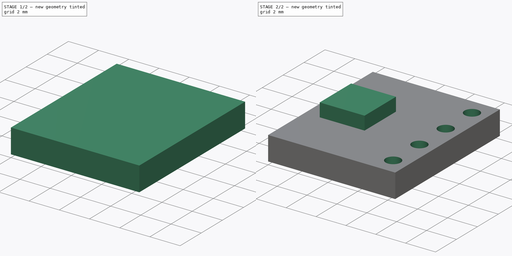
[diagram: build sequence overview — one tinted view per stage of 2, left to right]
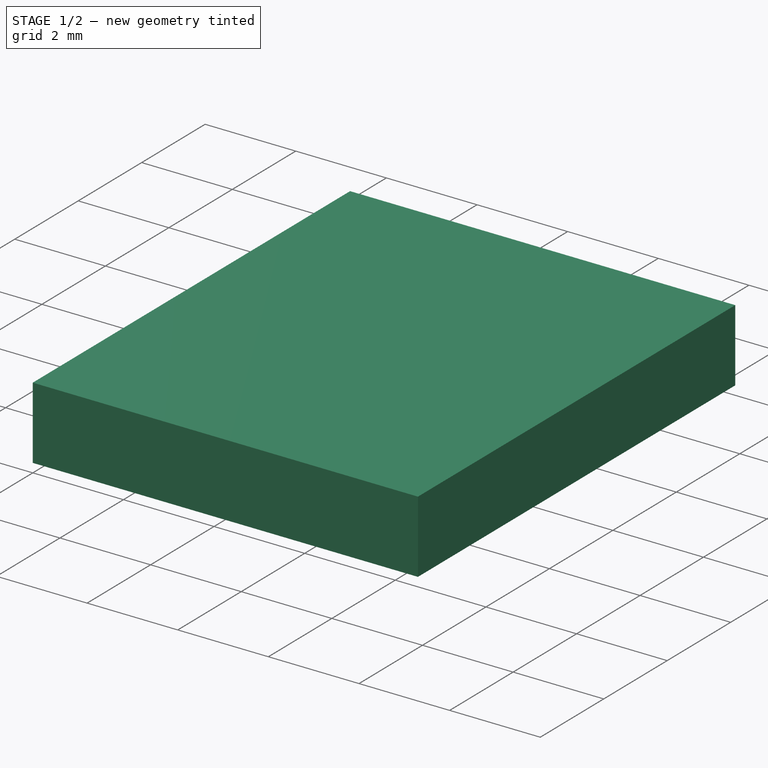
[diagram: stage 1 of 2 — iso view after this stage's code; geometry added in this stage tinted green]
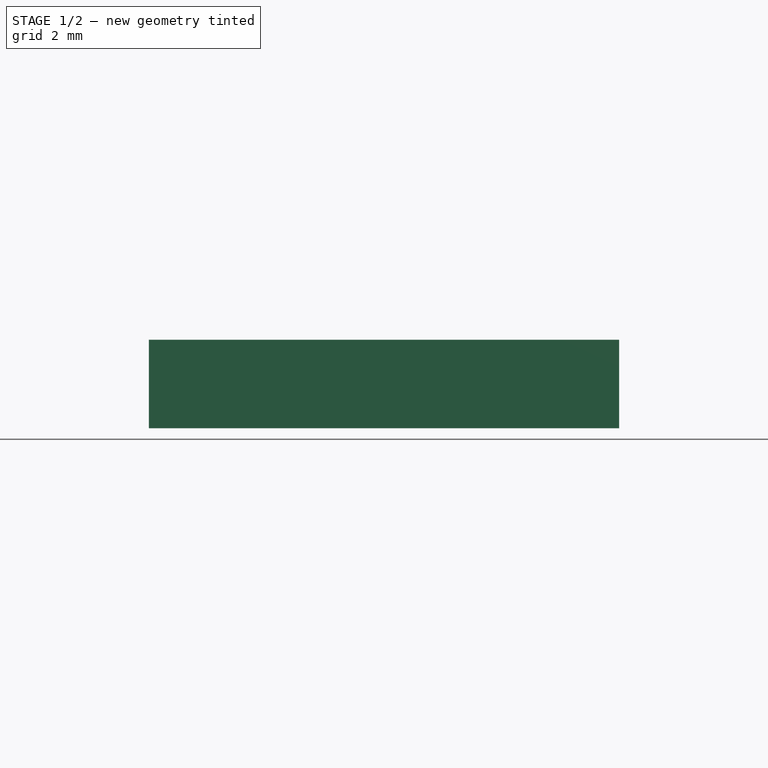
[diagram: stage 1 of 2 — front view after this stage's code; geometry added in this stage tinted green]
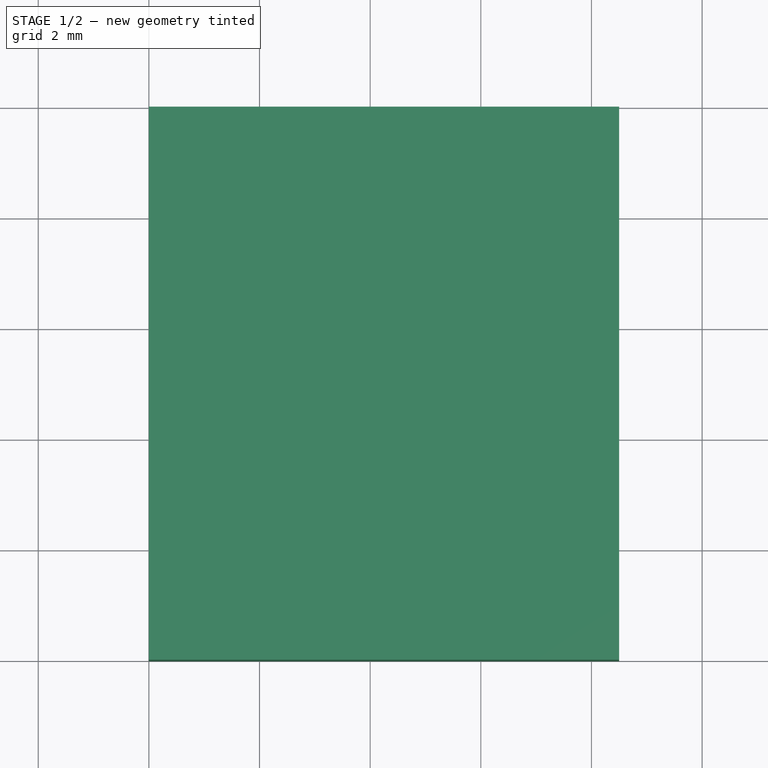
[diagram: stage 1 of 2 — top view after this stage's code; geometry added in this stage tinted green]
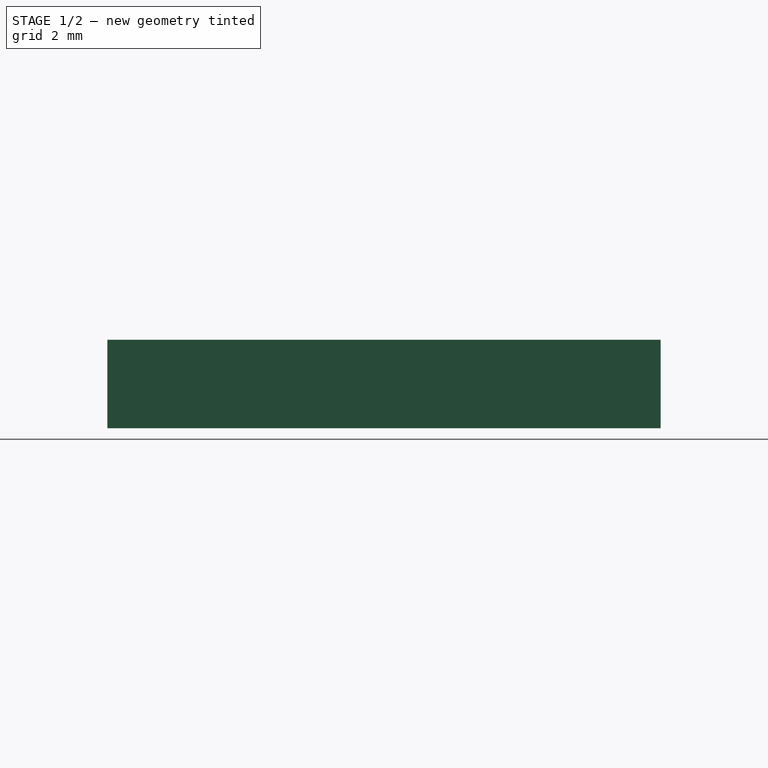
[diagram: stage 1 of 2 — right view after this stage's code; geometry added in this stage tinted green]
FCSTD DOCUMENT  (FreeCAD 0.21R33771 (Git))
Label: SI7021
License: Creative Commons Attribution-NonCommercial 4.0
LicenseURL: https://creativecommons.org/licenses/by-nc/4.0/
objects: Sketcher::SketchObject×2, Part::Box×1, PartDesign::FeatureBase×1, PartDesign::Pocket×1, PartDesign::Pad×1, PartDesign::Body×1
note: 9 computed .brp shape members not serialized (recipe doc carries the construction recipe); baked Part::Feature solids carry a one-line shape summary decoded from their .brp

FEATURE [Part::Box] Box  label="Cube"
  AttacherType = Attacher::AttachEngine3D
  Height = 1.6
  Length = 8.5
  Width = 10
FEATURE [Sketcher::SketchObject] Sketch  label="Holes"
  ExternalGeometry = -> [Box]
  FullyConstrained = true
  MapMode = 5
  Placement = pos=(0,0,1.6) rot=(0,0,1;0rad)
  Support = -> [Box]
  sketch-geometry (9):
    g0: Circle CenterX=7.5 CenterY=8.765 CenterZ=0 NormalX=0 NormalY=0 NormalZ=1 AngleXU=0 Radius=0.5
    g1: Circle CenterX=7.5 CenterY=6.255 CenterZ=0 NormalX=0 NormalY=0 NormalZ=1 AngleXU=0 Radius=0.5
    g2: LineSegment StartX=7.5 StartY=8.765 StartZ=0 EndX=7.5 EndY=6.255 EndZ=0
    g3: Circle CenterX=7.5 CenterY=3.745 CenterZ=0 NormalX=0 NormalY=0 NormalZ=1 AngleXU=0 Radius=0.5
    g4: LineSegment StartX=7.5 StartY=6.255 StartZ=0 EndX=7.5 EndY=3.745 EndZ=0
    g5: Circle CenterX=7.5 CenterY=1.235 CenterZ=0 NormalX=0 NormalY=0 NormalZ=1 AngleXU=0 Radius=0.5
    g6: LineSegment StartX=7.5 StartY=3.745 StartZ=0 EndX=7.5 EndY=1.235 EndZ=0
    g7: LineSegment StartX=7.5 StartY=1.235 StartZ=0 EndX=8.5 EndY=0 EndZ=0
    g8: LineSegment StartX=7.5 StartY=8.765 StartZ=0 EndX=8.5 EndY=10 EndZ=0
  constraints (22):
    c: Diameter(g0) = 1
    c: DistanceX(g0,g-4) = 1
    c: Diameter(g1) = 1
    c: Coincident(g0,g2)
    c: Coincident(g1,g2)
    c: Distance(g2) = 2.51
    c: Diameter(g3) = 1
    c: Coincident(g1,g4)
    c: Coincident(g3,g4)
    c: Equal(g2,g4)
    c: Parallel(g4,g2)
    c: Diameter(g5) = 1
    c: Coincident(g3,g6)
    c: Coincident(g5,g6)
    c: Equal(g2,g6)
    c: Parallel(g6,g2)
    c: Vertical(g2)
    c: Coincident(g7,g5)
    c: Coincident(g7,g-4)
    c: Coincident(g8,g0)
    c: Coincident(g8,g-4)
    c: Equal(g8,g7)
FEATURE [Sketcher::SketchObject] Sketch001  label="Sensor"
  ExternalGeometry = -> [Box]
  FullyConstrained = true
  MapMode = 5
  Placement = pos=(0,0,1.6) rot=(0,0,1;0rad)
  Support = -> [Box]
  sketch-geometry (6):
    g0: LineSegment StartX=1 StartY=6.5 StartZ=0 EndX=4 EndY=6.5 EndZ=0
    g1: LineSegment StartX=4 StartY=6.5 StartZ=0 EndX=4 EndY=3.5 EndZ=0
    g2: LineSegment StartX=4 StartY=3.5 StartZ=0 EndX=1 EndY=3.5 EndZ=0
    g3: LineSegment StartX=1 StartY=3.5 StartZ=0 EndX=1 EndY=6.5 EndZ=0
    g4: LineSegment StartX=0 StartY=10 StartZ=0 EndX=1 EndY=6.5 EndZ=0
    g5: LineSegment StartX=1 StartY=3.5 StartZ=0 EndX=0 EndY=0 EndZ=0
  constraints (16):
    c: Coincident(g0,g1)
    c: Coincident(g1,g2)
    c: Coincident(g2,g3)
    c: Coincident(g3,g0)
    c: Horizontal(g0)
    c: Horizontal(g2)
    c: Vertical(g1)
    c: Vertical(g3)
    c: DistanceX(g0,g0) = 3
    c: DistanceY(g3,g3) = 3
    c: DistanceX(g-5,g0) = 1
    c: Coincident(g4,g-5)
    c: Coincident(g4,g0)
    c: Coincident(g5,g2)
    c: Coincident(g5,g-5)
    c: Equal(g4,g5)
FEATURE [PartDesign::FeatureBase] BaseFeature
  BaseFeature = -> Box
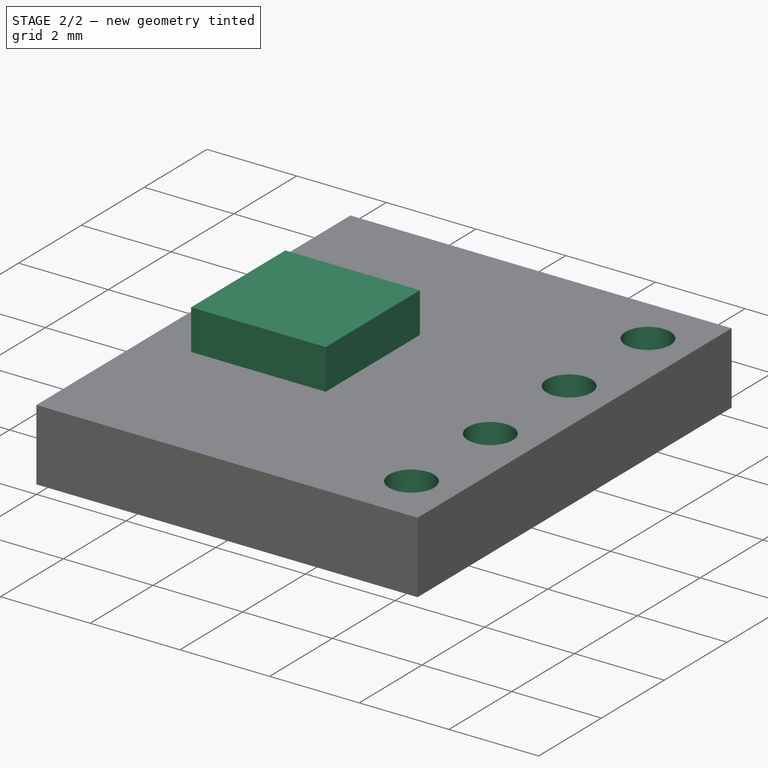
[diagram: stage 2 of 2 — iso view after this stage's code; geometry added in this stage tinted green]
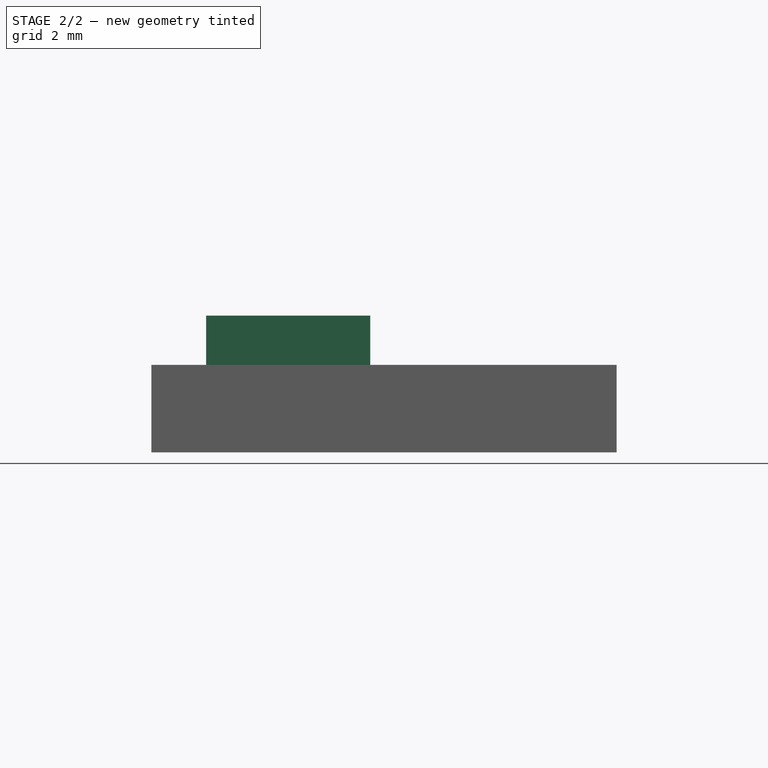
[diagram: stage 2 of 2 — front view after this stage's code; geometry added in this stage tinted green]
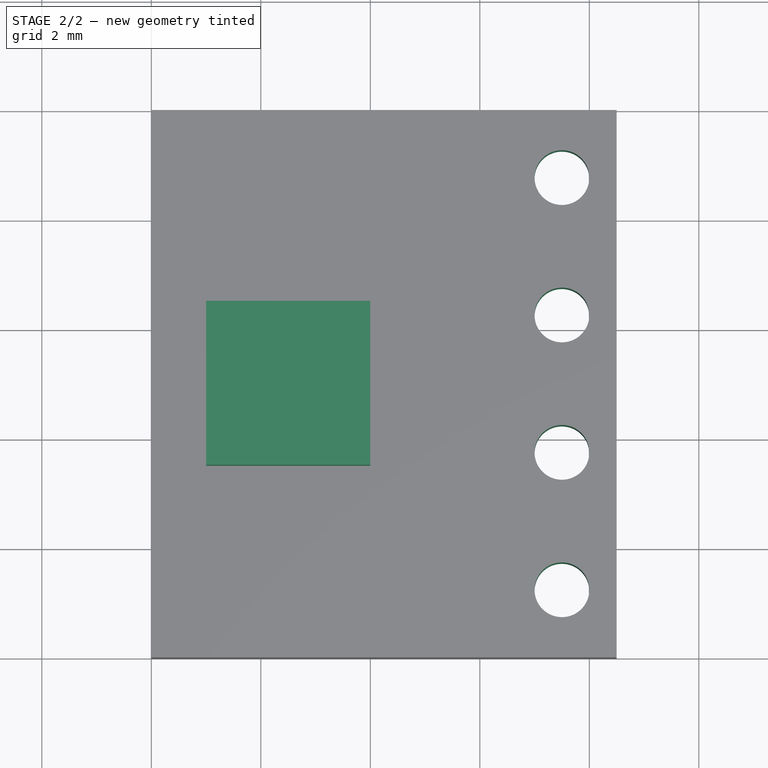
[diagram: stage 2 of 2 — top view after this stage's code; geometry added in this stage tinted green]
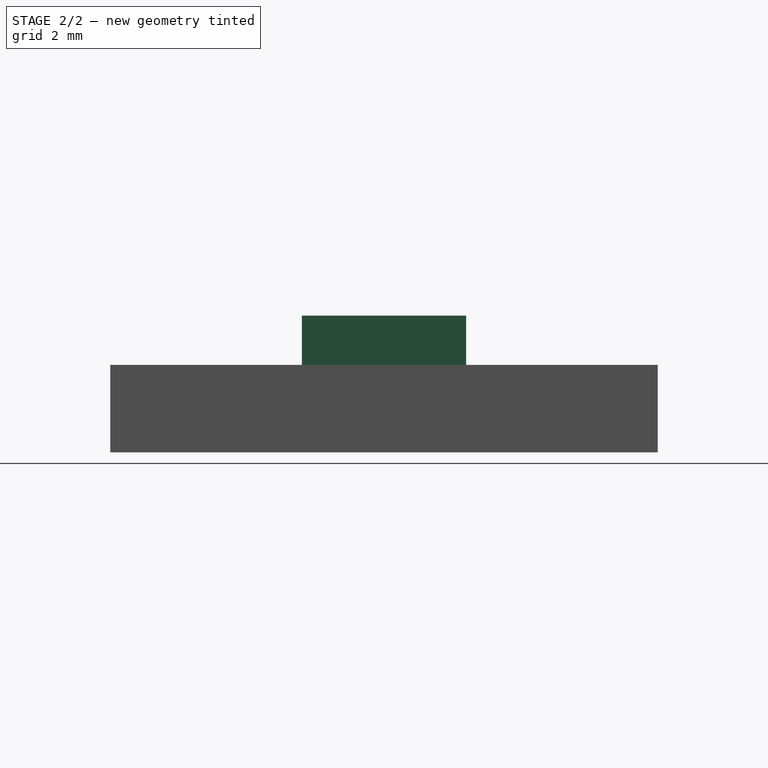
[diagram: stage 2 of 2 — right view after this stage's code; geometry added in this stage tinted green]
FEATURE [PartDesign::Pocket] Pocket
  BaseFeature = -> BaseFeature
  Direction = (0,0,-1)
  Length = 5
  Length2 = 5
  Profile = -> Sketch
  ReferenceAxis = -> Sketch [N_Axis]
  Type = 1
FEATURE [PartDesign::Pad] Pad
  BaseFeature = -> Pocket
  Direction = (0,0,1)
  Length = 0.9
  Length2 = 10
  Profile = -> Sketch001
  ReferenceAxis = -> Sketch001 [N_Axis]
  Type = 0
FEATURE [PartDesign::Body] Body
  BaseFeature = -> Box
  Group = -> [BaseFeature,Sketch,Sketch001,Pocket,Pad]
  Origin = -> Origin
  Tip = -> Pad
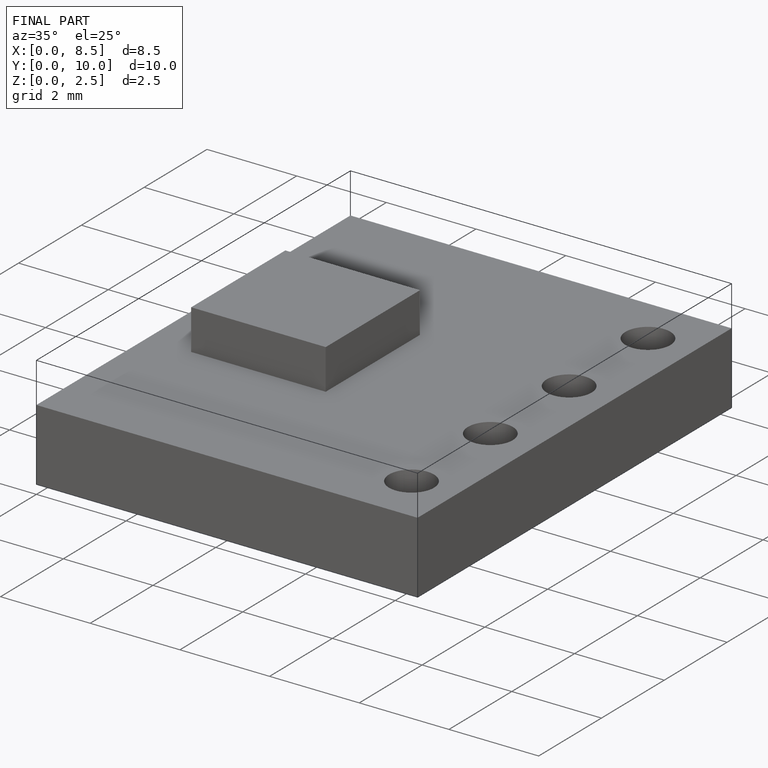
[diagram: finished part — iso view with bounding-box wireframe]
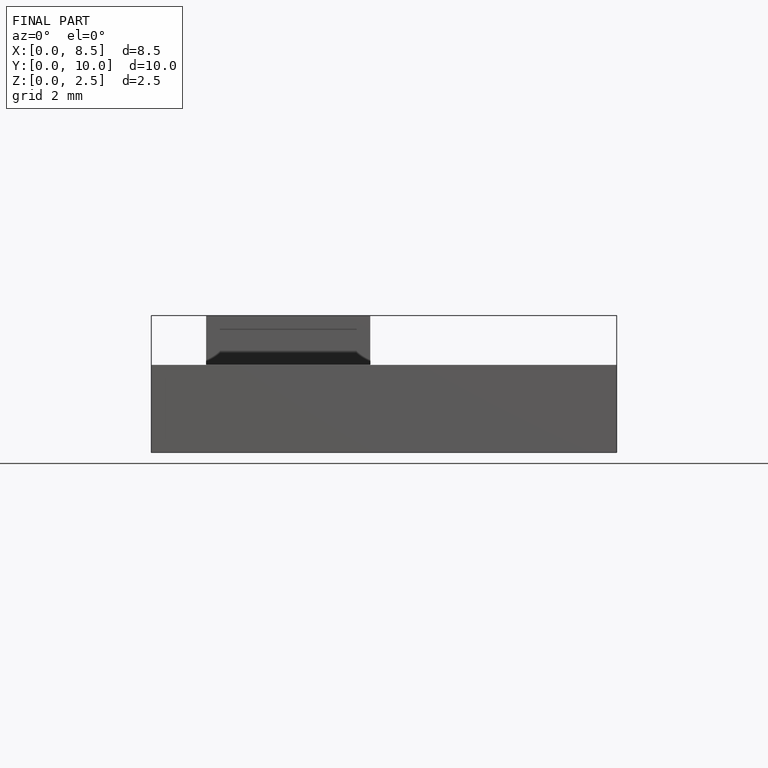
[diagram: finished part — front view with bounding-box wireframe]
